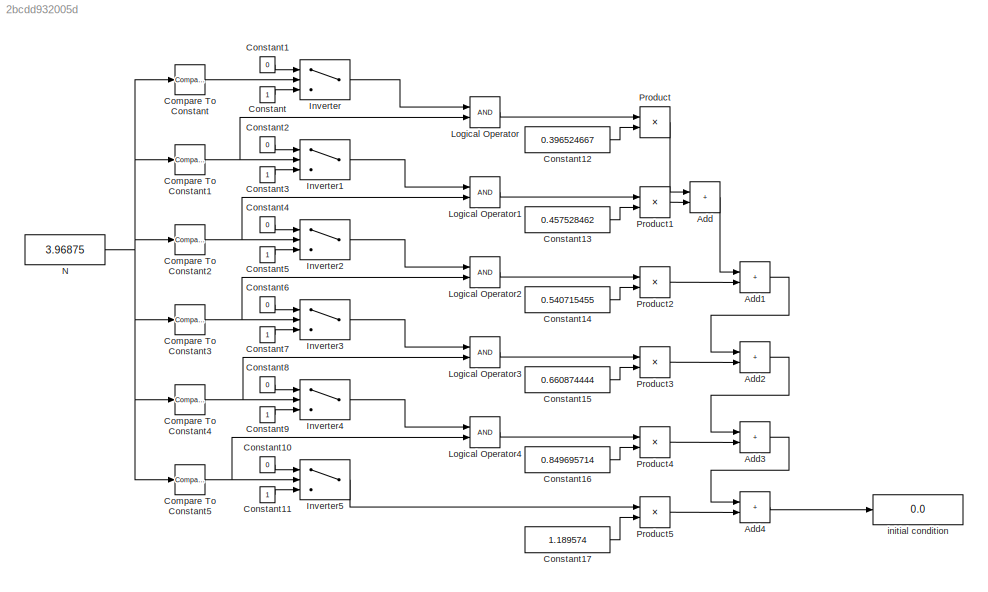
MODEL slx_2bcdd932005d
KIND model
CONFIG AbsTol = auto
CONFIG EnableMultiTasking = off
CONFIG FixedStep = auto
CONFIG MaxStep = auto
CONFIG MinStep = auto
CONFIG RelTol = 1e-3
CONFIG SampleTimeConstraint = Unconstrained
CONFIG SolverName = VariableStepAuto
CONFIG StartTime = 0.0
CONFIG StopTime = 10.0
BLOCK [Sum] Add
  IconShape = rectangular
  Ports = [2, 1]
BLOCK [Sum] Add1
  IconShape = rectangular
  Ports = [2, 1]
BLOCK [Sum] Add2
  IconShape = rectangular
  Ports = [2, 1]
BLOCK [Sum] Add3
  IconShape = rectangular
  Ports = [2, 1]
BLOCK [Sum] Add4
  IconShape = rectangular
  Ports = [2, 1]
BLOCK [Reference] Compare To Constant  REF=simulink/Logic and Bit
Operations/Compare
To Constant
  Ports = [1, 1]
  SourceBlock = simulink/Logic and Bit\nOperations/Compare\nTo Constant
  SourceProductBaseCode = SL
  SourceType = Compare To Constant
BLOCK [Reference] Compare To Constant1  REF=simulink/Logic and Bit
Operations/Compare
To Constant
  Ports = [1, 1]
  SourceBlock = simulink/Logic and Bit\nOperations/Compare\nTo Constant
  SourceProductBaseCode = SL
  SourceType = Compare To Constant
BLOCK [Reference] Compare To Constant2  REF=simulink/Logic and Bit
Operations/Compare
To Constant
  Ports = [1, 1]
  SourceBlock = simulink/Logic and Bit\nOperations/Compare\nTo Constant
  SourceProductBaseCode = SL
  SourceType = Compare To Constant
BLOCK [Reference] Compare To Constant3  REF=simulink/Logic and Bit
Operations/Compare
To Constant
  Ports = [1, 1]
  SourceBlock = simulink/Logic and Bit\nOperations/Compare\nTo Constant
  SourceProductBaseCode = SL
  SourceType = Compare To Constant
BLOCK [Reference] Compare To Constant4  REF=simulink/Logic and Bit
Operations/Compare
To Constant
  Ports = [1, 1]
  SourceBlock = simulink/Logic and Bit\nOperations/Compare\nTo Constant
  SourceProductBaseCode = SL
  SourceType = Compare To Constant
BLOCK [Reference] Compare To Constant5  REF=simulink/Logic and Bit
Operations/Compare
To Constant
  Ports = [1, 1]
  SourceBlock = simulink/Logic and Bit\nOperations/Compare\nTo Constant
  SourceProductBaseCode = SL
  SourceType = Compare To Constant
BLOCK [Constant] Constant
BLOCK [Constant] Constant1
  Value = 0
BLOCK [Constant] Constant10
  Value = 0
BLOCK [Constant] Constant11
BLOCK [Constant] Constant12
  Value = 0.396524667
BLOCK [Constant] Constant13
  Value = 0.457528462
BLOCK [Constant] Constant14
  Value = 0.540715455
BLOCK [Constant] Constant15
  Value = 0.660874444
BLOCK [Constant] Constant16
  Value = 0.849695714
BLOCK [Constant] Constant17
  Value = 1.189574
BLOCK [Constant] Constant2
  Value = 0
BLOCK [Constant] Constant3
BLOCK [Constant] Constant4
  Value = 0
BLOCK [Constant] Constant5
BLOCK [Constant] Constant6
  Value = 0
BLOCK [Constant] Constant7
BLOCK [Constant] Constant8
  Value = 0
BLOCK [Constant] Constant9
BLOCK [Switch] Inverter
  Criteria = u2 > Threshold
  InputSameDT = off
  SaturateOnIntegerOverflow = off
BLOCK [Switch] Inverter1
  Criteria = u2 > Threshold
  InputSameDT = off
  SaturateOnIntegerOverflow = off
BLOCK [Switch] Inverter2
  Criteria = u2 > Threshold
  InputSameDT = off
  SaturateOnIntegerOverflow = off
BLOCK [Switch] Inverter3
  Criteria = u2 > Threshold
  InputSameDT = off
  SaturateOnIntegerOverflow = off
BLOCK [Switch] Inverter4
  Criteria = u2 > Threshold
  InputSameDT = off
  SaturateOnIntegerOverflow = off
BLOCK [Switch] Inverter5
  Criteria = u2 > Threshold
  InputSameDT = off
  SaturateOnIntegerOverflow = off
BLOCK [Logic] Logical Operator
  AllPortsSameDT = off
  OutDataTypeStr = boolean
  Ports = [2, 1]
BLOCK [Logic] Logical Operator1
  AllPortsSameDT = off
  OutDataTypeStr = boolean
  Ports = [2, 1]
BLOCK [Logic] Logical Operator2
  AllPortsSameDT = off
  OutDataTypeStr = boolean
  Ports = [2, 1]
BLOCK [Logic] Logical Operator3
  AllPortsSameDT = off
  OutDataTypeStr = boolean
  Ports = [2, 1]
BLOCK [Logic] Logical Operator4
  AllPortsSameDT = off
  OutDataTypeStr = boolean
  Ports = [2, 1]
BLOCK [Constant] N
  Value = 3.96875
BLOCK [Product] Product
  Ports = [2, 1]
BLOCK [Product] Product1
  Ports = [2, 1]
BLOCK [Product] Product2
  Ports = [2, 1]
BLOCK [Product] Product3
  Ports = [2, 1]
BLOCK [Product] Product4
  Ports = [2, 1]
BLOCK [Product] Product5
  Ports = [2, 1]
BLOCK [Display] initial condition
  Decimation = 1
  Format = long
  Ports = [1]
LINE Add1:1 -> Add2:1
LINE Add2:1 -> Add3:1
LINE Add3:1 -> Add4:1
LINE Add4:1 -> initial condition:1
LINE Add:1 -> Add1:1
NET Compare To Constant1:1 -> Inverter1:2, Logical Operator:2
NET Compare To Constant2:1 -> Inverter2:2, Logical Operator1:2
NET Compare To Constant3:1 -> Inverter3:2, Logical Operator2:2
NET Compare To Constant4:1 -> Inverter4:2, Logical Operator3:2
NET Compare To Constant5:1 -> Inverter5:2, Logical Operator4:2
LINE Compare To Constant:1 -> Inverter:2
LINE Constant10:1 -> Inverter5:1
LINE Constant11:1 -> Inverter5:3
LINE Constant12:1 -> Product:2
LINE Constant13:1 -> Product1:2
LINE Constant14:1 -> Product2:2
LINE Constant15:1 -> Product3:2
LINE Constant16:1 -> Product4:2
LINE Constant17:1 -> Product5:2
LINE Constant1:1 -> Inverter:1
LINE Constant2:1 -> Inverter1:1
LINE Constant3:1 -> Inverter1:3
LINE Constant4:1 -> Inverter2:1
LINE Constant5:1 -> Inverter2:3
LINE Constant6:1 -> Inverter3:1
LINE Constant7:1 -> Inverter3:3
LINE Constant8:1 -> Inverter4:1
LINE Constant9:1 -> Inverter4:3
LINE Constant:1 -> Inverter:3
LINE Inverter1:1 -> Logical Operator1:1
LINE Inverter2:1 -> Logical Operator2:1
LINE Inverter3:1 -> Logical Operator3:1
LINE Inverter4:1 -> Logical Operator4:1
LINE Inverter5:1 -> Product5:1
LINE Inverter:1 -> Logical Operator:1
LINE Logical Operator1:1 -> Product1:1
LINE Logical Operator2:1 -> Product2:1
LINE Logical Operator3:1 -> Product3:1
LINE Logical Operator4:1 -> Product4:1
LINE Logical Operator:1 -> Product:1
NET N:1 -> Compare To Constant1:1, Compare To Constant2:1, Compare To Constant3:1, Compare To Constant4:1, Compare To Constant5:1, Compare To Constant:1
LINE Product1:1 -> Add:2
LINE Product2:1 -> Add1:2
LINE Product3:1 -> Add2:2
LINE Product4:1 -> Add3:2
LINE Product5:1 -> Add4:2
LINE Product:1 -> Add:1
note: NET lines group one-source signal fan-out (src -> all destinations, sorted); 1:1 wires keep LINE
